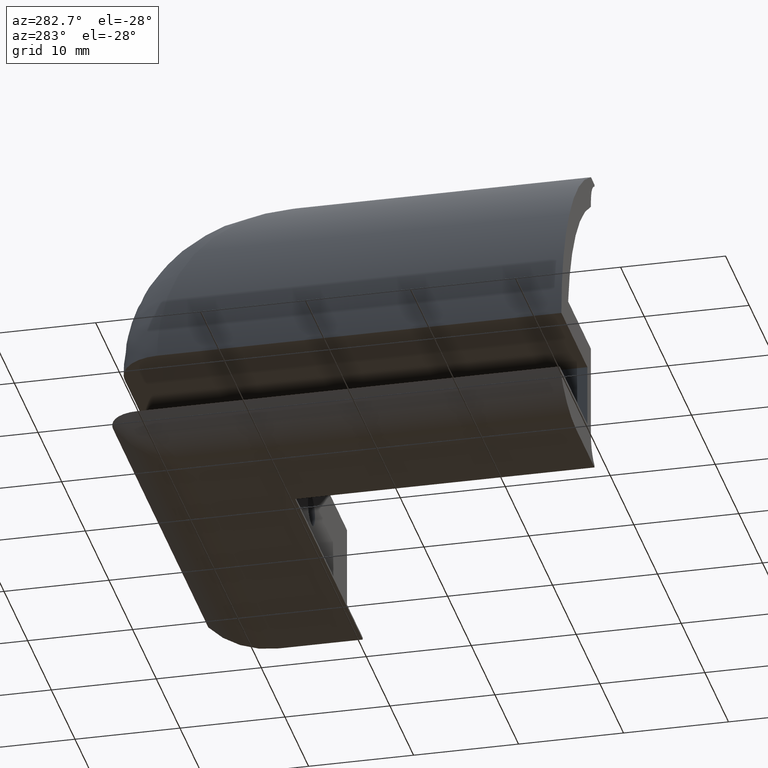
[diagram: clean part render]
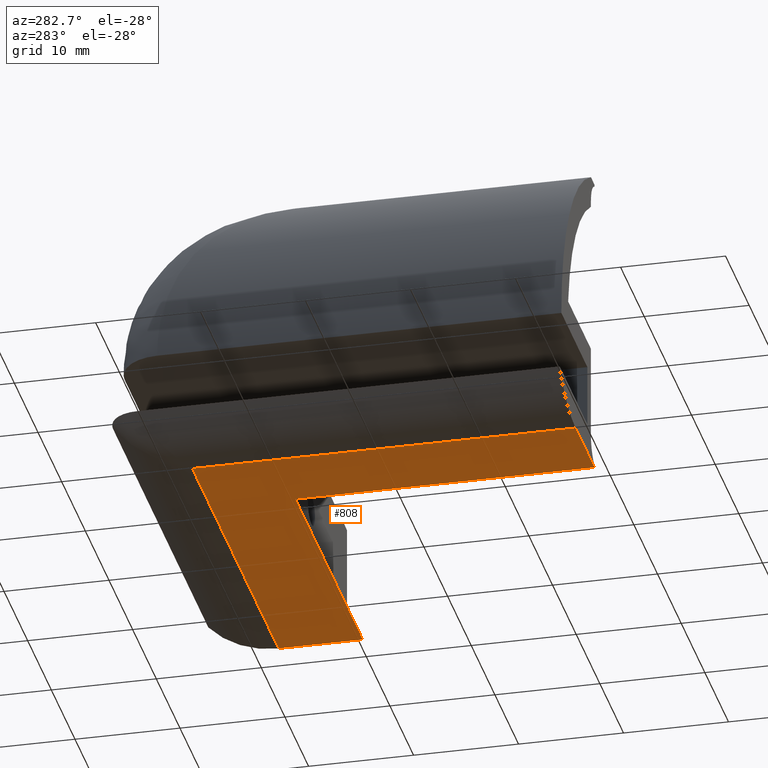
[diagram: same view with one face highlighted and labeled with its STEP entity id]
A machine part, auxiliary view. The second image highlights one B-rep face of the part: STEP entity #808.
In plain terms, the highlighted planar face has unit normal (0, 0, -1).
Its self-contained STEP definition (entity closure, byte-faithful):
#231=CARTESIAN_POINT('',(0.0,0.0,-8.881784E-016));
#232=VERTEX_POINT('',#231);
#233=CARTESIAN_POINT('',(0.0,-28.499999999999858,8.881784E-016));
#234=VERTEX_POINT('',#233);
#235=CARTESIAN_POINT('',(0.0,0.0,9.153902E-017));
#236=DIRECTION('',(0.0,-1.0,0.0));
#237=VECTOR('',#236,28.499999999999854);
#238=LINE('',#235,#237);
#239=EDGE_CURVE('',#232,#234,#238,.T.);
#397=CARTESIAN_POINT('',(-8.0,-28.499999999999858,8.881784E-016));
#398=VERTEX_POINT('',#397);
#406=CARTESIAN_POINT('',(-8.0,-28.499999999999858,8.881784E-016));
#407=DIRECTION('',(1.0,0.0,0.0));
#408=VECTOR('',#407,8.0);
#409=LINE('',#406,#408);
#410=EDGE_CURVE('',#398,#234,#409,.T.);
#606=CARTESIAN_POINT('',(28.500006930995369,1.474376E-013,-8.881784E-016));
#607=VERTEX_POINT('',#606);
#623=CARTESIAN_POINT('',(28.500006930995369,1.474376E-013,-8.881784E-016));
#624=DIRECTION('',(-1.0,0.0,0.0));
#625=VECTOR('',#624,28.500006930995507);
#626=LINE('',#623,#625);
#627=EDGE_CURVE('',#607,#232,#626,.T.);
#709=CARTESIAN_POINT('',(28.500006930995369,8.000000000000146,-8.881784E-016));
#710=VERTEX_POINT('',#709);
#711=CARTESIAN_POINT('',(28.500006930995369,8.000000000000147,-1.378037E-015));
#712=DIRECTION('',(0.0,-1.0,0.0));
#713=VECTOR('',#712,8.0);
#714=LINE('',#711,#713);
#715=EDGE_CURVE('',#710,#607,#714,.T.);
#783=CARTESIAN_POINT('',(-8.001000000106842,-28.501000000075621,8.881784E-016));
#784=DIRECTION('',(0.0,0.0,-1.0));
#785=DIRECTION('',(0.0,1.0,0.0));
#786=AXIS2_PLACEMENT_3D('',#783,#784,#785);
#787=PLANE('',#786);
#788=CARTESIAN_POINT('',(-8.0,8.000000000000071,-8.881784E-016));
#789=VERTEX_POINT('',#788);
#790=CARTESIAN_POINT('',(28.500006930995369,8.000000000000146,-8.881784E-016));
#791=DIRECTION('',(-1.0,0.0,0.0));
#792=VECTOR('',#791,36.500006930995390);
#793=LINE('',#790,#792);
#794=EDGE_CURVE('',#710,#789,#793,.T.);
#795=ORIENTED_EDGE('',*,*,#794,.F.);
#796=ORIENTED_EDGE('',*,*,#715,.T.);
#797=ORIENTED_EDGE('',*,*,#627,.T.);
#798=ORIENTED_EDGE('',*,*,#239,.T.);
#799=ORIENTED_EDGE('',*,*,#410,.F.);
#800=CARTESIAN_POINT('',(-8.0,8.000000000000073,-3.983197E-016));
#801=DIRECTION('',(0.0,-1.0,0.0));
#802=VECTOR('',#801,36.499999999999929);
#803=LINE('',#800,#802);
#804=EDGE_CURVE('',#789,#398,#803,.T.);
#805=ORIENTED_EDGE('',*,*,#804,.F.);
#806=EDGE_LOOP('',(#795,#796,#797,#798,#799,#805));
#807=FACE_OUTER_BOUND('',#806,.T.);
#808=ADVANCED_FACE('',(#807),#787,.T.);